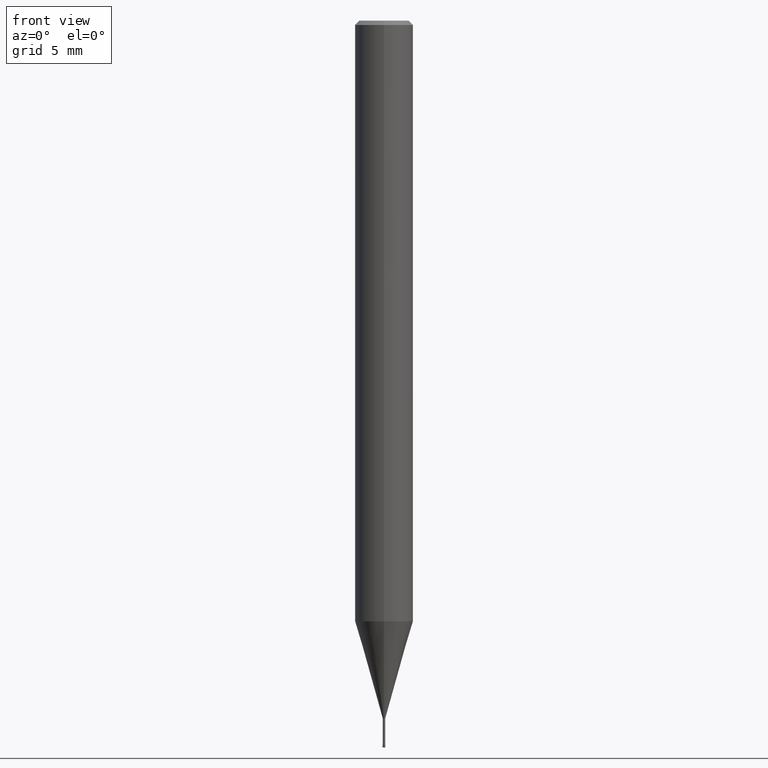
[diagram: clean part render]
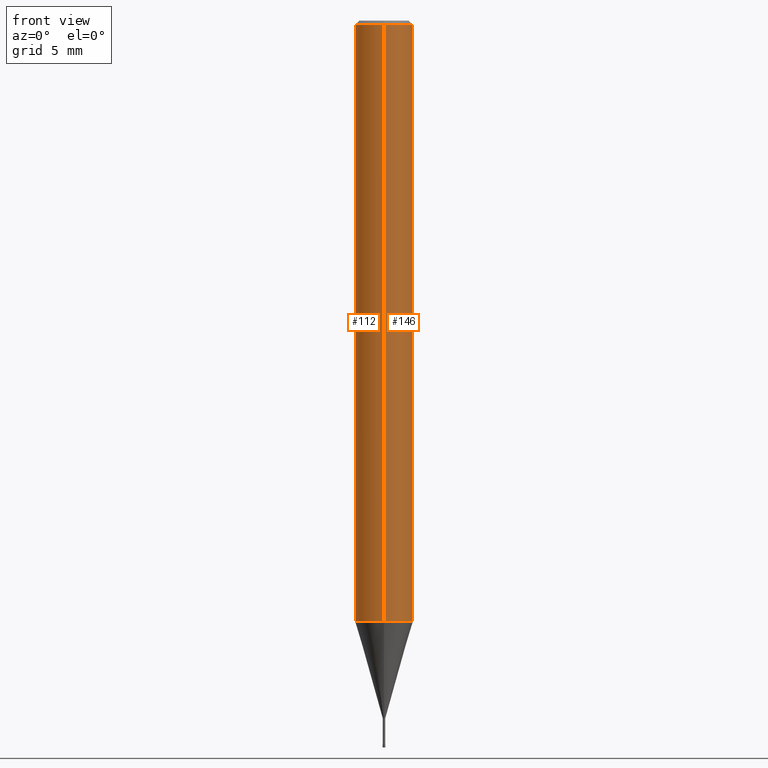
[diagram: same view with one multi-face feature highlighted, each face labeled with its STEP entity id]
A machine part, front view. The highlighted faces form ONE feature: a constant-radius fillet chain: 2 tangent blend faces with common blend radius 2 mm. The faces share edges in the B-rep.
Their STEP definitions:
[1] entity #146 (Cylinder):
#102=VERTEX_POINT('',#255);
#108=VERTEX_POINT('',#262);
#146=ADVANCED_FACE('',(#304),#305,.T.);
#174=EDGE_CURVE('',#194,#108,#337,.T.);
#178=VERTEX_POINT('',#341);
#186=EDGE_CURVE('',#178,#102,#350,.T.);
#190=EDGE_CURVE('',#102,#108,#355,.T.);
#194=VERTEX_POINT('',#359);
#196=EDGE_CURVE('',#194,#178,#361,.T.);
#255=CARTESIAN_POINT('',(2.44921270764475E-016,-2.0,-41.322));
#262=CARTESIAN_POINT('',(2.44921270764475E-016,-2.0,-0.299999999999997));
#304=FACE_OUTER_BOUND('',#479,.T.);
#305=CYLINDRICAL_SURFACE('',#480,2.0);
#337=CIRCLE('',#519,2.0);
#341=CARTESIAN_POINT('',(0.0,2.0,-41.322));
#350=CIRCLE('',#536,2.0);
#355=LINE('',#542,#543);
#359=CARTESIAN_POINT('',(0.0,2.0,-0.299999999999997));
#361=LINE('',#551,#552);
#479=EDGE_LOOP('',(#670,#671,#672,#673));
#480=AXIS2_PLACEMENT_3D('',#674,#675,#676);
#519=AXIS2_PLACEMENT_3D('',#714,#715,#716);
#536=AXIS2_PLACEMENT_3D('',#729,#730,#731);
#542=CARTESIAN_POINT('',(2.44921270764475E-016,-2.0,-20.811));
#543=VECTOR('',#738,1.0);
#551=CARTESIAN_POINT('',(-2.44921270764475E-016,2.0,-20.811));
#552=VECTOR('',#742,1.0);
#670=ORIENTED_EDGE('',*,*,#196,.F.);
#671=ORIENTED_EDGE('',*,*,#174,.T.);
#672=ORIENTED_EDGE('',*,*,#190,.F.);
#673=ORIENTED_EDGE('',*,*,#186,.F.);
#674=CARTESIAN_POINT('',(0.0,0.0,-20.811));
#675=DIRECTION('',(-0.0,-0.0,1.0));
#676=DIRECTION('',(0.0,1.0,0.0));
#714=CARTESIAN_POINT('',(0.0,0.0,-0.299999999999997));
#715=DIRECTION('',(0.0,0.0,-1.0));
#716=DIRECTION('',(0.0,1.0,0.0));
#729=CARTESIAN_POINT('',(0.0,0.0,-41.322));
#730=DIRECTION('',(0.0,0.0,-1.0));
#731=DIRECTION('',(0.0,1.0,0.0));
#738=DIRECTION('',(-0.0,-0.0,1.0));
#742=DIRECTION('',(0.0,0.0,-1.0));
[2] entity #112 (Cylinder):
#102=VERTEX_POINT('',#255);
#108=VERTEX_POINT('',#262);
#112=ADVANCED_FACE('',(#266),#267,.T.);
#126=EDGE_CURVE('',#108,#194,#282,.T.);
#178=VERTEX_POINT('',#341);
#190=EDGE_CURVE('',#102,#108,#355,.T.);
#194=VERTEX_POINT('',#359);
#196=EDGE_CURVE('',#194,#178,#361,.T.);
#228=EDGE_CURVE('',#102,#178,#399,.T.);
#255=CARTESIAN_POINT('',(2.44921270764475E-016,-2.0,-41.322));
#262=CARTESIAN_POINT('',(2.44921270764475E-016,-2.0,-0.299999999999997));
#266=FACE_OUTER_BOUND('',#432,.T.);
#267=CYLINDRICAL_SURFACE('',#433,2.0);
#282=CIRCLE('',#453,2.0);
#341=CARTESIAN_POINT('',(0.0,2.0,-41.322));
#355=LINE('',#542,#543);
#359=CARTESIAN_POINT('',(0.0,2.0,-0.299999999999997));
#361=LINE('',#551,#552);
#399=CIRCLE('',#597,2.0);
#432=EDGE_LOOP('',(#624,#625,#626,#627));
#433=AXIS2_PLACEMENT_3D('',#628,#629,#630);
#453=AXIS2_PLACEMENT_3D('',#645,#646,#647);
#542=CARTESIAN_POINT('',(2.44921270764475E-016,-2.0,-20.811));
#543=VECTOR('',#738,1.0);
#551=CARTESIAN_POINT('',(-2.44921270764475E-016,2.0,-20.811));
#552=VECTOR('',#742,1.0);
#597=AXIS2_PLACEMENT_3D('',#799,#800,#801);
#624=ORIENTED_EDGE('',*,*,#196,.T.);
#625=ORIENTED_EDGE('',*,*,#228,.F.);
#626=ORIENTED_EDGE('',*,*,#190,.T.);
#627=ORIENTED_EDGE('',*,*,#126,.T.);
#628=CARTESIAN_POINT('',(0.0,0.0,-20.811));
#629=DIRECTION('',(-0.0,-0.0,1.0));
#630=DIRECTION('',(0.0,1.0,0.0));
#645=CARTESIAN_POINT('',(0.0,0.0,-0.299999999999997));
#646=DIRECTION('',(0.0,0.0,-1.0));
#647=DIRECTION('',(0.0,1.0,0.0));
#738=DIRECTION('',(-0.0,-0.0,1.0));
#742=DIRECTION('',(0.0,0.0,-1.0));
#799=CARTESIAN_POINT('',(0.0,0.0,-41.322));
#800=DIRECTION('',(0.0,0.0,-1.0));
#801=DIRECTION('',(0.0,1.0,0.0));